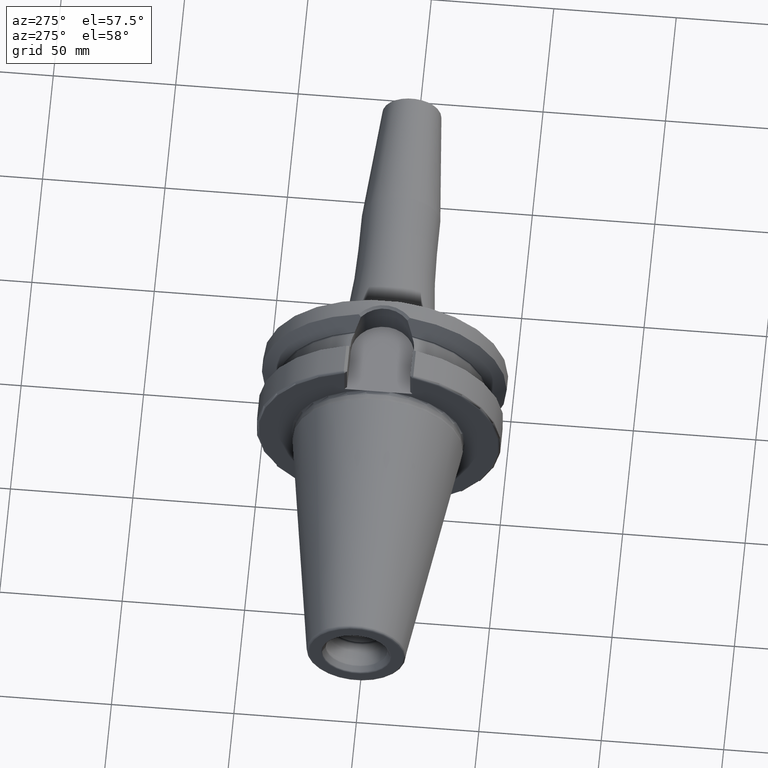
[diagram: clean part render]
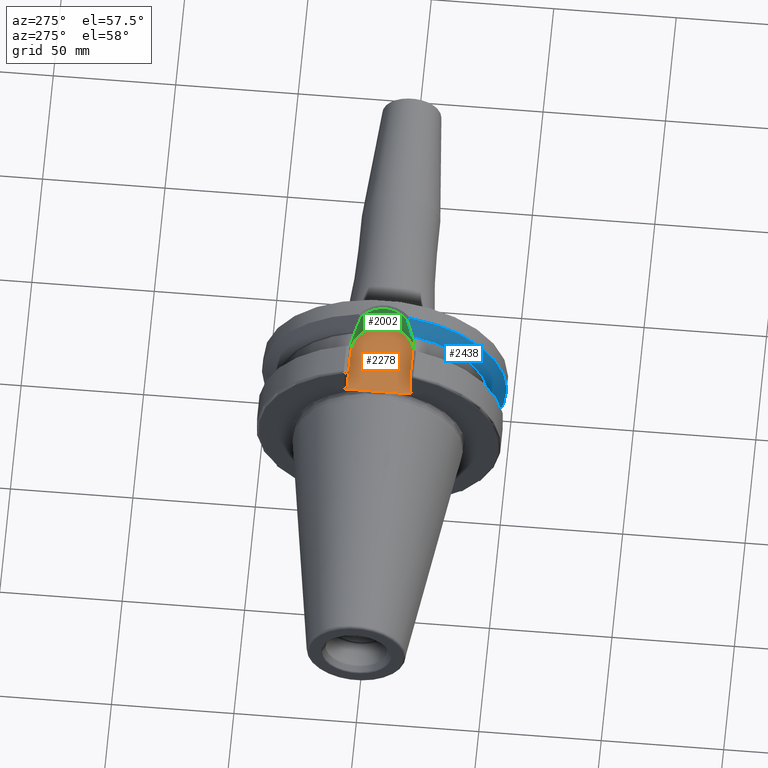
[diagram: same view with three faces highlighted in distinct colors, each labeled with its STEP entity id]
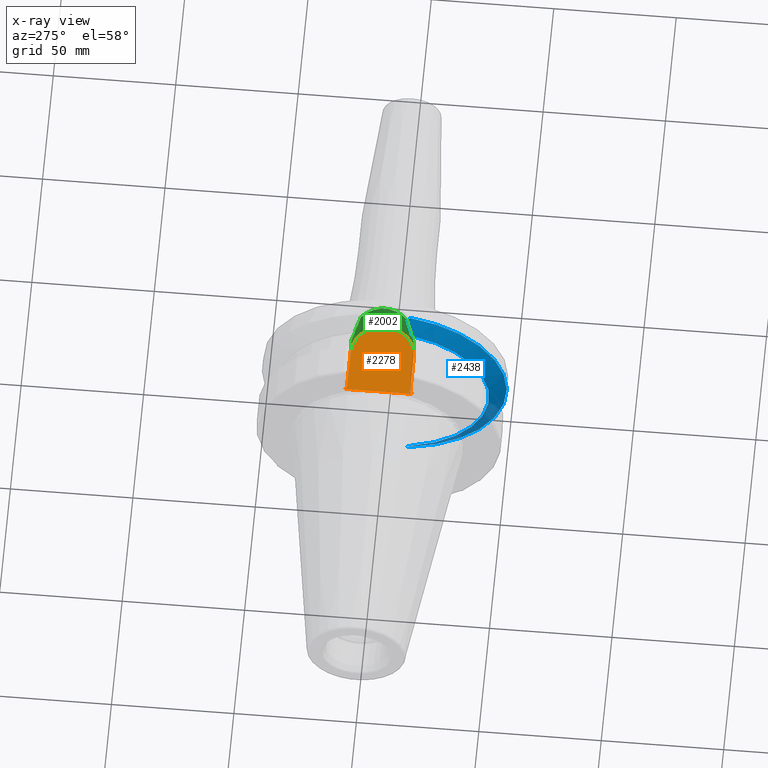
[diagram: x-ray of the same camera — body ghosted, the three highlighted faces saturated]
A machine part, auxiliary view with three faces highlighted in distinct colors.
The next image is the same camera in x-ray (body ghosted, the three faces saturated) — at least one of them is partly hidden behind the body in this view.
Their STEP definitions:

[orange] entity #2278 — the highlighted planar face has unit normal (0, 0, 1).
#675=DIRECTION('',(1.E0,0.E0,0.E0));
#676=VECTOR('',#675,1.73475E1);
#677=CARTESIAN_POINT('',(4.E0,-1.29025E1,3.52E1));
#678=LINE('',#677,#676);
#679=DIRECTION('',(0.E0,1.E0,0.E0));
#680=VECTOR('',#679,8.750740591798E0);
#681=CARTESIAN_POINT('',(3.E0,-1.39025E1,3.52E1));
#682=LINE('',#681,#680);
#683=DIRECTION('',(0.E0,1.E0,0.E0));
#684=VECTOR('',#683,8.750740591798E0);
#685=CARTESIAN_POINT('',(3.E0,5.151759408202E0,3.52E1));
#686=LINE('',#685,#684);
#687=DIRECTION('',(-1.E0,0.E0,0.E0));
#688=VECTOR('',#687,1.73475E1);
#689=CARTESIAN_POINT('',(2.13475E1,1.29025E1,3.52E1));
#690=LINE('',#689,#688);
#691=CARTESIAN_POINT('',(2.13475E1,0.E0,3.52E1));
#692=DIRECTION('',(0.E0,0.E0,1.E0));
#693=DIRECTION('',(0.E0,-1.E0,0.E0));
#694=AXIS2_PLACEMENT_3D('',#691,#692,#693);
#700=DIRECTION('',(7.071067811865E-1,7.071067811865E-1,0.E0));
#701=VECTOR('',#700,1.414213562373E0);
#702=CARTESIAN_POINT('',(3.E0,-1.39025E1,3.52E1));
#703=LINE('',#702,#701);
#709=CARTESIAN_POINT('',(3.E0,-5.151759408202E0,3.52E1));
#710=CARTESIAN_POINT('',(3.E0,-4.661054534839E0,3.52E1));
#711=CARTESIAN_POINT('',(2.985185415825E0,-3.679726334521E0,3.52E1));
#712=CARTESIAN_POINT('',(2.950323079566E0,-2.207949548308E0,3.52E1));
#713=CARTESIAN_POINT('',(2.926055980582E0,-7.360772184078E-1,3.52E1));
#714=CARTESIAN_POINT('',(2.926055295138E0,7.360096394602E-1,3.52E1));
#715=CARTESIAN_POINT('',(2.950321957583E0,2.207902450145E0,3.52E1));
#716=CARTESIAN_POINT('',(2.985185074234E0,3.679708044881E0,3.52E1));
#717=CARTESIAN_POINT('',(3.E0,4.661048861273E0,3.52E1));
#718=CARTESIAN_POINT('',(3.E0,5.151759408202E0,3.52E1));
#725=DIRECTION('',(-7.071067811865E-1,7.071067811865E-1,0.E0));
#726=VECTOR('',#725,1.414213562373E0);
#727=CARTESIAN_POINT('',(4.E0,1.29025E1,3.52E1));
#728=LINE('',#727,#726);
#1326=CARTESIAN_POINT('',(2.13475E1,-1.29025E1,3.52E1));
#1327=CARTESIAN_POINT('',(2.13475E1,1.29025E1,3.52E1));
#1328=VERTEX_POINT('',#1326);
#1329=VERTEX_POINT('',#1327);
#1330=CARTESIAN_POINT('',(3.E0,5.151759408202E0,3.52E1));
#1331=VERTEX_POINT('',#1330);
#1332=CARTESIAN_POINT('',(3.E0,-5.151759408202E0,3.52E1));
#1333=VERTEX_POINT('',#1332);
#1367=CARTESIAN_POINT('',(4.E0,-1.29025E1,3.52E1));
#1369=VERTEX_POINT('',#1367);
#1371=CARTESIAN_POINT('',(3.E0,-1.39025E1,3.52E1));
#1373=VERTEX_POINT('',#1371);
#1380=CARTESIAN_POINT('',(3.E0,1.39025E1,3.52E1));
#1381=VERTEX_POINT('',#1380);
#1382=CARTESIAN_POINT('',(4.E0,1.29025E1,3.52E1));
#1384=VERTEX_POINT('',#1382);
#2260=CARTESIAN_POINT('',(0.E0,0.E0,3.52E1));
#2261=DIRECTION('',(0.E0,0.E0,1.E0));
#2262=DIRECTION('',(1.E0,0.E0,0.E0));
#2263=AXIS2_PLACEMENT_3D('',#2260,#2261,#2262);
#2264=PLANE('',#2263);
#2265=ORIENTED_EDGE('',*,*,#2014,.F.);
#2267=ORIENTED_EDGE('',*,*,#2266,.F.);
#2268=ORIENTED_EDGE('',*,*,#1625,.T.);
#2270=ORIENTED_EDGE('',*,*,#2269,.T.);
#2271=ORIENTED_EDGE('',*,*,#1603,.T.);
#2273=ORIENTED_EDGE('',*,*,#2272,.F.);
#2274=ORIENTED_EDGE('',*,*,#2251,.F.);
#2275=ORIENTED_EDGE('',*,*,#1985,.F.);
#2276=EDGE_LOOP('',(#2265,#2267,#2268,#2270,#2271,#2273,#2274,#2275));
#2277=FACE_OUTER_BOUND('',#2276,.F.);
#2278=ADVANCED_FACE('',(#2277),#2264,.T.);
#695=CIRCLE('',#694,1.29025E1);
#719=B_SPLINE_CURVE_WITH_KNOTS('',3,(#709,#710,#711,#712,#713,#714,#715,#716,
#717,#718),.UNSPECIFIED.,.F.,.F.,(4,1,1,1,1,1,1,4),(0.E0,1.428571428571E-1,
2.857142857143E-1,4.285714285714E-1,5.714285714286E-1,7.142857142857E-1,
8.571428571429E-1,1.E0),.UNSPECIFIED.);
#1603=EDGE_CURVE('',#1331,#1381,#686,.T.);
#1625=EDGE_CURVE('',#1373,#1333,#682,.T.);
#1985=EDGE_CURVE('',#1328,#1329,#695,.T.);
#2014=EDGE_CURVE('',#1369,#1328,#678,.T.);
#2251=EDGE_CURVE('',#1329,#1384,#690,.T.);
#2266=EDGE_CURVE('',#1373,#1369,#703,.T.);
#2269=EDGE_CURVE('',#1333,#1331,#719,.T.);
#2272=EDGE_CURVE('',#1384,#1381,#728,.T.);

[blue] entity #2438 — the highlighted conical surface has half-angle 60 deg.
#245=CARTESIAN_POINT('',(3.073066823617E1,0.E0,0.E0));
#246=DIRECTION('',(1.E0,0.E0,0.E0));
#247=DIRECTION('',(0.E0,-1.E0,0.E0));
#248=AXIS2_PLACEMENT_3D('',#245,#246,#247);
#391=CARTESIAN_POINT('',(3.016210431090E1,-9.422168385896E0,-4.808834737145E1));
#392=CARTESIAN_POINT('',(2.984184465633E1,-9.721776927818E0,-4.746439031418E1));
#393=CARTESIAN_POINT('',(2.916110296190E1,-1.029742776940E1,-4.613939859477E1));
#394=CARTESIAN_POINT('',(2.801848253867E1,-1.107377940524E1,-4.392131510326E1));
#395=CARTESIAN_POINT('',(2.717774587881E1,-1.152030945269E1,-4.229484073698E1));
#396=CARTESIAN_POINT('',(2.67375E1,-1.172273032403E1,-4.144514217760E1));
#509=CARTESIAN_POINT('',(2.67375E1,-1.172273032403E1,4.144514217760E1));
#510=CARTESIAN_POINT('',(2.716326249817E1,-1.152696877347E1,4.226688702234E1));
#511=CARTESIAN_POINT('',(2.797767730262E1,-1.109641946289E1,4.384231514855E1));
#512=CARTESIAN_POINT('',(2.908877542636E1,-1.035012398508E1,4.599886190686E1));
#513=CARTESIAN_POINT('',(2.975376209181E1,-9.797469511785E0,4.729292626465E1));
#514=CARTESIAN_POINT('',(3.006746015187E1,-9.509826559925E0,4.790397267337E1));
#763=CARTESIAN_POINT('',(2.67375E1,0.E0,0.E0));
#764=DIRECTION('',(-1.E0,0.E0,0.E0));
#765=DIRECTION('',(0.E0,-2.721714149834E-1,-9.622487832499E-1));
#766=AXIS2_PLACEMENT_3D('',#763,#764,#765);
#768=CARTESIAN_POINT('',(3.073066823617E1,-1.024362896192E1,-4.892666166765E1));
#769=CARTESIAN_POINT('',(3.066616058198E1,-1.015105563406E1,-4.883189036884E1));
#770=CARTESIAN_POINT('',(3.053803749239E1,-9.966777409929E0,-4.864343408956E1));
#771=CARTESIAN_POINT('',(3.034851551012E1,-9.692952413043E0,-4.836399253968E1));
#772=CARTESIAN_POINT('',(3.022394652802E1,-9.512141392294E0,-4.817986911933E1));
#773=CARTESIAN_POINT('',(3.016210431090E1,-9.422168385896E0,-4.808834737145E1));
#792=CARTESIAN_POINT('',(3.073066823617E1,0.E0,0.E0));
#793=DIRECTION('',(1.E0,0.E0,0.E0));
#794=DIRECTION('',(0.E0,-2.094051574285E-1,9.778289625708E-1));
#795=AXIS2_PLACEMENT_3D('',#792,#793,#794);
#975=CARTESIAN_POINT('',(3.006746015187E1,-9.509826559925E0,4.790397267337E1));
#976=CARTESIAN_POINT('',(3.013934013849E1,-9.614488815529E0,4.801012460295E1));
#977=CARTESIAN_POINT('',(3.028430182064E1,-9.824984272055E0,4.822389705980E1));
#978=CARTESIAN_POINT('',(3.050537248019E1,-1.014426259119E1,4.854898701617E1));
#979=CARTESIAN_POINT('',(3.065516521337E1,-1.035945529402E1,4.876865319706E1));
#980=CARTESIAN_POINT('',(3.073066823617E1,-1.046764030696E1,4.887922526651E1));
#1232=CARTESIAN_POINT('',(2.67375E1,-1.172273032403E1,-4.144514217760E1));
#1233=CARTESIAN_POINT('',(2.67375E1,-1.172273032403E1,4.144514217760E1));
#1234=VERTEX_POINT('',#1232);
#1235=VERTEX_POINT('',#1233);
#1248=CARTESIAN_POINT('',(3.073066823617E1,-4.99875E1,-1.224340637448E-14));
#1249=CARTESIAN_POINT('',(3.073066823617E1,-1.024362896192E1,
-4.892666166765E1));
#1250=VERTEX_POINT('',#1248);
#1251=VERTEX_POINT('',#1249);
#1256=CARTESIAN_POINT('',(3.073066823617E1,-1.046764030696E1,4.887922526651E1));
#1257=VERTEX_POINT('',#1256);
#1348=VERTEX_POINT('',#514);
#1356=VERTEX_POINT('',#391);
#2421=CARTESIAN_POINT('',(2.873408411809E1,0.E0,0.E0));
#2422=DIRECTION('',(1.E0,0.E0,0.E0));
#2423=DIRECTION('',(0.E0,-1.E0,0.E0));
#2424=AXIS2_PLACEMENT_3D('',#2421,#2422,#2423);
#2425=CONICAL_SURFACE('',#2424,4.652931486589E1,6.E1);
#2427=ORIENTED_EDGE('',*,*,#2426,.T.);
#2428=ORIENTED_EDGE('',*,*,#1777,.T.);
#2430=ORIENTED_EDGE('',*,*,#2429,.T.);
#2431=ORIENTED_EDGE('',*,*,#1900,.T.);
#2432=ORIENTED_EDGE('',*,*,#1945,.T.);
#2433=ORIENTED_EDGE('',*,*,#1996,.T.);
#2435=ORIENTED_EDGE('',*,*,#2434,.T.);
#2436=EDGE_LOOP('',(#2427,#2428,#2430,#2431,#2432,#2433,#2435));
#2437=FACE_OUTER_BOUND('',#2436,.F.);
#2438=ADVANCED_FACE('',(#2437),#2425,.T.);
#249=CIRCLE('',#248,4.99875E1);
#397=B_SPLINE_CURVE_WITH_KNOTS('',3,(#391,#392,#393,#394,#395,#396),
.UNSPECIFIED.,.F.,.F.,(4,1,1,4),(0.E0,3.333333333333E-1,6.666666666667E-1,1.E0),
.UNSPECIFIED.);
#515=B_SPLINE_CURVE_WITH_KNOTS('',3,(#509,#510,#511,#512,#513,#514),
.UNSPECIFIED.,.F.,.F.,(4,1,1,4),(0.E0,3.333333333333E-1,6.666666666667E-1,1.E0),
.UNSPECIFIED.);
#767=CIRCLE('',#766,4.307112973177E1);
#774=B_SPLINE_CURVE_WITH_KNOTS('',3,(#768,#769,#770,#771,#772,#773),
.UNSPECIFIED.,.F.,.F.,(4,1,1,4),(0.E0,3.333333333333E-1,6.666666666667E-1,1.E0),
.UNSPECIFIED.);
#796=CIRCLE('',#795,4.99875E1);
#981=B_SPLINE_CURVE_WITH_KNOTS('',3,(#975,#976,#977,#978,#979,#980),
.UNSPECIFIED.,.F.,.F.,(4,1,1,4),(0.E0,3.333333333333E-1,6.666666666667E-1,1.E0),
.UNSPECIFIED.);
#1777=EDGE_CURVE('',#1250,#1251,#249,.T.);
#1900=EDGE_CURVE('',#1356,#1234,#397,.T.);
#1945=EDGE_CURVE('',#1234,#1235,#767,.T.);
#1996=EDGE_CURVE('',#1235,#1348,#515,.T.);
#2426=EDGE_CURVE('',#1257,#1250,#796,.T.);
#2429=EDGE_CURVE('',#1251,#1356,#774,.T.);
#2434=EDGE_CURVE('',#1348,#1257,#981,.T.);

[green] entity #2002 — the highlighted cylindrical surface (edge-blend (fillet) strip) has radius 12.9025 mm, axis along (0, 0, 1).
#361=CARTESIAN_POINT('',(2.64875E1,1.183447955129E1,4.068888937720E1));
#362=CARTESIAN_POINT('',(2.593767013310E1,1.207328392825E1,4.061943244291E1));
#363=CARTESIAN_POINT('',(2.482251458198E1,1.246756636177E1,4.050035379602E1));
#364=CARTESIAN_POINT('',(2.309259987866E1,1.282394305612E1,4.038817378856E1));
#365=CARTESIAN_POINT('',(2.193211835169E1,1.29025E1,4.036293000700E1));
#366=CARTESIAN_POINT('',(2.13475E1,1.29025E1,4.036293000700E1));
#380=CARTESIAN_POINT('',(2.13475E1,-1.29025E1,4.036293000700E1));
#381=CARTESIAN_POINT('',(2.193211835188E1,-1.29025E1,4.036293000700E1));
#382=CARTESIAN_POINT('',(2.309259987910E1,-1.282394305606E1,4.038817378858E1));
#383=CARTESIAN_POINT('',(2.482251458205E1,-1.246756636174E1,4.050035379603E1));
#384=CARTESIAN_POINT('',(2.593767013313E1,-1.207328392824E1,4.061943244291E1));
#385=CARTESIAN_POINT('',(2.64875E1,-1.183447955129E1,4.068888937720E1));
#468=DIRECTION('',(0.E0,0.E0,1.E0));
#469=VECTOR('',#468,5.162930007E0);
#470=CARTESIAN_POINT('',(2.13475E1,-1.29025E1,3.52E1));
#471=LINE('',#470,#469);
#472=CARTESIAN_POINT('',(2.67375E1,1.172273032403E1,4.098131548340E1));
#473=CARTESIAN_POINT('',(2.67375E1,1.172273032403E1,4.095473554554E1));
#474=CARTESIAN_POINT('',(2.672998645392E1,1.172618901674E1,4.090260058967E1));
#475=CARTESIAN_POINT('',(2.669626231199E1,1.174163763665E1,4.082489375053E1));
#476=CARTESIAN_POINT('',(2.663891469758E1,1.176763685688E1,4.075541966358E1));
#477=CARTESIAN_POINT('',(2.656490253593E1,1.180065791496E1,4.070695762482E1));
#478=CARTESIAN_POINT('',(2.651408131936E1,1.182293464297E1,4.069224724672E1));
#479=CARTESIAN_POINT('',(2.64875E1,1.183447955129E1,4.068888937720E1));
#481=DIRECTION('',(0.E0,0.E0,1.E0));
#482=VECTOR('',#481,4.638266941984E-1);
#483=CARTESIAN_POINT('',(2.67375E1,1.172273032403E1,4.098131548340E1));
#484=LINE('',#483,#482);
#485=CARTESIAN_POINT('',(3.006745596523E1,9.509830398822E0,4.790396451831E1));
#486=CARTESIAN_POINT('',(2.975376574683E1,9.797465906135E0,4.729293338983E1));
#487=CARTESIAN_POINT('',(2.908879078217E1,1.035010846105E1,4.599889189585E1));
#488=CARTESIAN_POINT('',(2.797778721927E1,1.109635283633E1,4.384252820130E1));
#489=CARTESIAN_POINT('',(2.716331106798E1,1.152694644153E1,4.226698076473E1));
#490=CARTESIAN_POINT('',(2.67375E1,1.172273032403E1,4.144514217760E1));
#492=CARTESIAN_POINT('',(3.006745596523E1,9.509830398822E0,4.790396451831E1));
#493=CARTESIAN_POINT('',(3.025602323543E1,9.336962247659E0,4.794381122211E1));
#494=CARTESIAN_POINT('',(3.087555960284E1,8.733968449164E0,4.807865814963E1));
#495=CARTESIAN_POINT('',(3.182329079822E1,7.604954293039E0,4.830628782978E1));
#496=CARTESIAN_POINT('',(3.278245826289E1,6.066530119911E0,4.855976175201E1));
#497=CARTESIAN_POINT('',(3.351388652994E1,4.419183995064E0,4.876698535386E1));
#498=CARTESIAN_POINT('',(3.400760487019E1,2.694887506994E0,4.891354792853E1));
#499=CARTESIAN_POINT('',(3.425791062555E1,9.253265654410E-1,4.898989734734E1));
#500=CARTESIAN_POINT('',(3.426247528429E1,-8.590494541089E-1,4.899130238765E1));
#501=CARTESIAN_POINT('',(3.402134509987E1,-2.629406522498E0,4.891770358422E1));
#502=CARTESIAN_POINT('',(3.353667477174E1,-4.355883298183E0,4.877363209671E1));
#503=CARTESIAN_POINT('',(3.281400217688E1,-6.006662285743E0,4.856845191646E1));
#504=CARTESIAN_POINT('',(3.186306851566E1,-7.549823393820E0,4.831638541797E1));
#505=CARTESIAN_POINT('',(3.090696912501E1,-8.701095609486E0,4.808579201701E1));
#506=CARTESIAN_POINT('',(3.027267380653E1,-9.321685205845E0,4.794733903084E1));
#507=CARTESIAN_POINT('',(3.006746015187E1,-9.509826559925E0,4.790397267337E1));
#509=CARTESIAN_POINT('',(2.67375E1,-1.172273032403E1,4.144514217760E1));
#510=CARTESIAN_POINT('',(2.716326249817E1,-1.152696877347E1,4.226688702234E1));
#511=CARTESIAN_POINT('',(2.797767730262E1,-1.109641946289E1,4.384231514855E1));
#512=CARTESIAN_POINT('',(2.908877542636E1,-1.035012398508E1,4.599886190686E1));
#513=CARTESIAN_POINT('',(2.975376209181E1,-9.797469511785E0,4.729292626465E1));
#514=CARTESIAN_POINT('',(3.006746015187E1,-9.509826559925E0,4.790397267337E1));
#516=DIRECTION('',(0.E0,0.E0,1.E0));
#517=VECTOR('',#516,4.638266941984E-1);
#518=CARTESIAN_POINT('',(2.67375E1,-1.172273032403E1,4.098131548340E1));
#519=LINE('',#518,#517);
#520=CARTESIAN_POINT('',(2.64875E1,-1.183447955129E1,4.068888937720E1));
#521=CARTESIAN_POINT('',(2.651408131936E1,-1.182293464297E1,4.069224724672E1));
#522=CARTESIAN_POINT('',(2.656490253593E1,-1.180065791496E1,4.070695762482E1));
#523=CARTESIAN_POINT('',(2.663891469758E1,-1.176763685688E1,4.075541966358E1));
#524=CARTESIAN_POINT('',(2.669626231199E1,-1.174163763665E1,4.082489375053E1));
#525=CARTESIAN_POINT('',(2.672998645392E1,-1.172618901674E1,4.090260058967E1));
#526=CARTESIAN_POINT('',(2.67375E1,-1.172273032403E1,4.095473554554E1));
#527=CARTESIAN_POINT('',(2.67375E1,-1.172273032403E1,4.098131548340E1));
#656=DIRECTION('',(0.E0,0.E0,1.E0));
#657=VECTOR('',#656,5.162930007E0);
#658=CARTESIAN_POINT('',(2.13475E1,1.29025E1,3.52E1));
#659=LINE('',#658,#657);
#691=CARTESIAN_POINT('',(2.13475E1,0.E0,3.52E1));
#692=DIRECTION('',(0.E0,0.E0,1.E0));
#693=DIRECTION('',(0.E0,-1.E0,0.E0));
#694=AXIS2_PLACEMENT_3D('',#691,#692,#693);
#1212=CARTESIAN_POINT('',(2.67375E1,-1.172273032403E1,4.098131548340E1));
#1214=VERTEX_POINT('',#1212);
#1217=CARTESIAN_POINT('',(2.64875E1,-1.183447955129E1,4.068888937720E1));
#1219=VERTEX_POINT('',#1217);
#1220=CARTESIAN_POINT('',(2.64875E1,1.183447955129E1,4.068888937720E1));
#1222=VERTEX_POINT('',#1220);
#1225=CARTESIAN_POINT('',(2.67375E1,1.172273032403E1,4.098131548340E1));
#1227=VERTEX_POINT('',#1225);
#1228=CARTESIAN_POINT('',(2.67375E1,1.172273032403E1,4.144514217760E1));
#1230=VERTEX_POINT('',#1228);
#1233=CARTESIAN_POINT('',(2.67375E1,-1.172273032403E1,4.144514217760E1));
#1235=VERTEX_POINT('',#1233);
#1326=CARTESIAN_POINT('',(2.13475E1,-1.29025E1,3.52E1));
#1327=CARTESIAN_POINT('',(2.13475E1,1.29025E1,3.52E1));
#1328=VERTEX_POINT('',#1326);
#1329=VERTEX_POINT('',#1327);
#1342=CARTESIAN_POINT('',(2.13475E1,1.29025E1,4.036293000700E1));
#1343=VERTEX_POINT('',#1342);
#1345=CARTESIAN_POINT('',(2.13475E1,-1.29025E1,4.036293000700E1));
#1346=VERTEX_POINT('',#1345);
#1348=VERTEX_POINT('',#514);
#1349=VERTEX_POINT('',#485);
#1977=CARTESIAN_POINT('',(2.13475E1,0.E0,3.52E1));
#1978=DIRECTION('',(0.E0,0.E0,1.E0));
#1979=DIRECTION('',(1.E0,0.E0,0.E0));
#1980=AXIS2_PLACEMENT_3D('',#1977,#1978,#1979);
#1981=CYLINDRICAL_SURFACE('',#1980,1.29025E1);
#1982=ORIENTED_EDGE('',*,*,#1886,.F.);
#1984=ORIENTED_EDGE('',*,*,#1983,.F.);
#1986=ORIENTED_EDGE('',*,*,#1985,.T.);
#1988=ORIENTED_EDGE('',*,*,#1987,.T.);
#1989=ORIENTED_EDGE('',*,*,#1868,.F.);
#1990=ORIENTED_EDGE('',*,*,#1959,.F.);
#1991=ORIENTED_EDGE('',*,*,#1931,.T.);
#1993=ORIENTED_EDGE('',*,*,#1992,.F.);
#1995=ORIENTED_EDGE('',*,*,#1994,.T.);
#1997=ORIENTED_EDGE('',*,*,#1996,.F.);
#1998=ORIENTED_EDGE('',*,*,#1943,.F.);
#1999=ORIENTED_EDGE('',*,*,#1972,.F.);
#2000=EDGE_LOOP('',(#1982,#1984,#1986,#1988,#1989,#1990,#1991,#1993,#1995,#1997,
#1998,#1999));
#2001=FACE_OUTER_BOUND('',#2000,.F.);
#2002=ADVANCED_FACE('',(#2001),#1981,.F.);
#367=B_SPLINE_CURVE_WITH_KNOTS('',3,(#361,#362,#363,#364,#365,#366),
.UNSPECIFIED.,.F.,.F.,(4,1,1,4),(0.E0,3.333333333333E-1,6.666666666667E-1,1.E0),
.UNSPECIFIED.);
#386=B_SPLINE_CURVE_WITH_KNOTS('',3,(#380,#381,#382,#383,#384,#385),
.UNSPECIFIED.,.F.,.F.,(4,1,1,4),(0.E0,3.333333333333E-1,6.666666666667E-1,1.E0),
.UNSPECIFIED.);
#480=B_SPLINE_CURVE_WITH_KNOTS('',3,(#472,#473,#474,#475,#476,#477,#478,#479),
.UNSPECIFIED.,.F.,.F.,(4,1,1,1,1,4),(0.E0,2.E-1,4.E-1,6.E-1,8.E-1,1.E0),
.UNSPECIFIED.);
#491=B_SPLINE_CURVE_WITH_KNOTS('',3,(#485,#486,#487,#488,#489,#490),
.UNSPECIFIED.,.F.,.F.,(4,1,1,4),(0.E0,3.333333333333E-1,6.666666666667E-1,1.E0),
.UNSPECIFIED.);
#508=B_SPLINE_CURVE_WITH_KNOTS('',3,(#492,#493,#494,#495,#496,#497,#498,#499,
#500,#501,#502,#503,#504,#505,#506,#507),.UNSPECIFIED.,.F.,.F.,(4,1,1,1,1,1,1,1,
1,1,1,1,1,4),(0.E0,3.546209800455E-2,1.196386243301E-1,2.038151506557E-1,
2.879916769813E-1,3.721682033068E-1,4.563447296324E-1,5.405212559580E-1,
6.246977822835E-1,7.088743086091E-1,7.930508349347E-1,8.772273612603E-1,
9.614038875858E-1,1.E0),.UNSPECIFIED.);
#515=B_SPLINE_CURVE_WITH_KNOTS('',3,(#509,#510,#511,#512,#513,#514),
.UNSPECIFIED.,.F.,.F.,(4,1,1,4),(0.E0,3.333333333333E-1,6.666666666667E-1,1.E0),
.UNSPECIFIED.);
#528=B_SPLINE_CURVE_WITH_KNOTS('',3,(#520,#521,#522,#523,#524,#525,#526,#527),
.UNSPECIFIED.,.F.,.F.,(4,1,1,1,1,4),(0.E0,2.E-1,4.E-1,6.E-1,8.E-1,1.E0),
.UNSPECIFIED.);
#695=CIRCLE('',#694,1.29025E1);
#1868=EDGE_CURVE('',#1222,#1343,#367,.T.);
#1886=EDGE_CURVE('',#1346,#1219,#386,.T.);
#1931=EDGE_CURVE('',#1227,#1230,#484,.T.);
#1943=EDGE_CURVE('',#1214,#1235,#519,.T.);
#1959=EDGE_CURVE('',#1227,#1222,#480,.T.);
#1972=EDGE_CURVE('',#1219,#1214,#528,.T.);
#1983=EDGE_CURVE('',#1328,#1346,#471,.T.);
#1985=EDGE_CURVE('',#1328,#1329,#695,.T.);
#1987=EDGE_CURVE('',#1329,#1343,#659,.T.);
#1992=EDGE_CURVE('',#1349,#1230,#491,.T.);
#1994=EDGE_CURVE('',#1349,#1348,#508,.T.);
#1996=EDGE_CURVE('',#1235,#1348,#515,.T.);